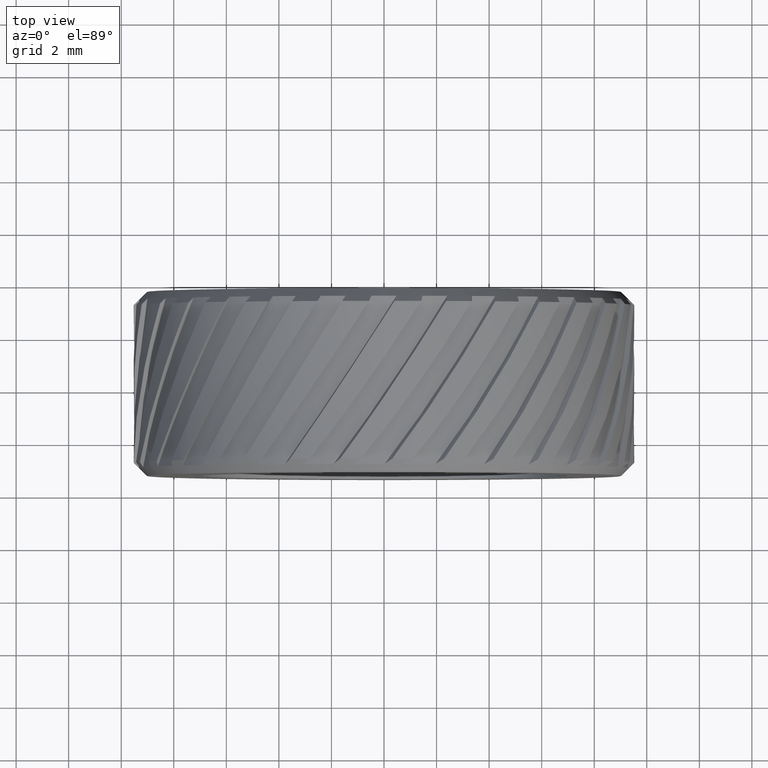
[diagram: clean part render]
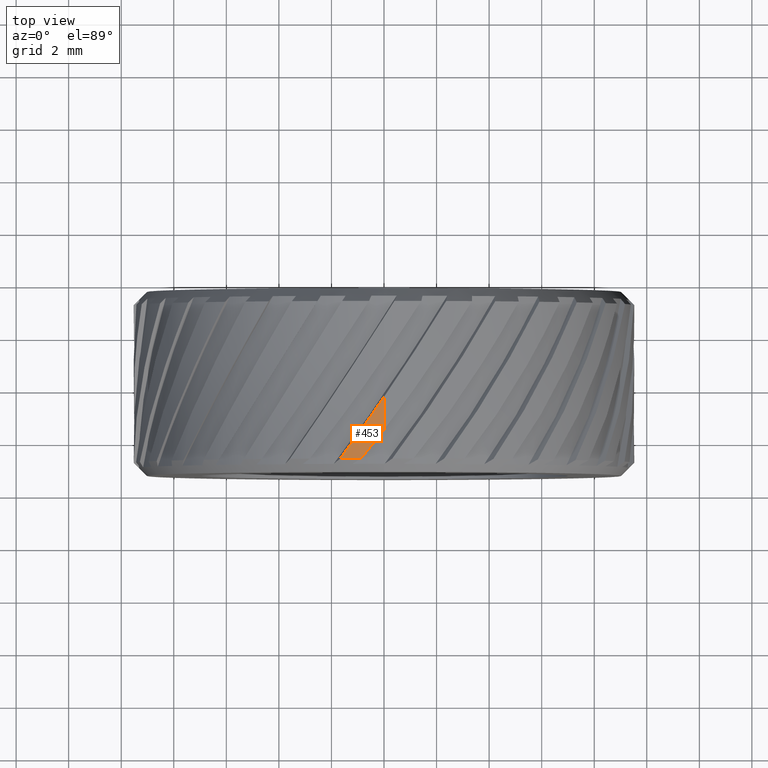
[diagram: same view with one face highlighted and labeled with its STEP entity id]
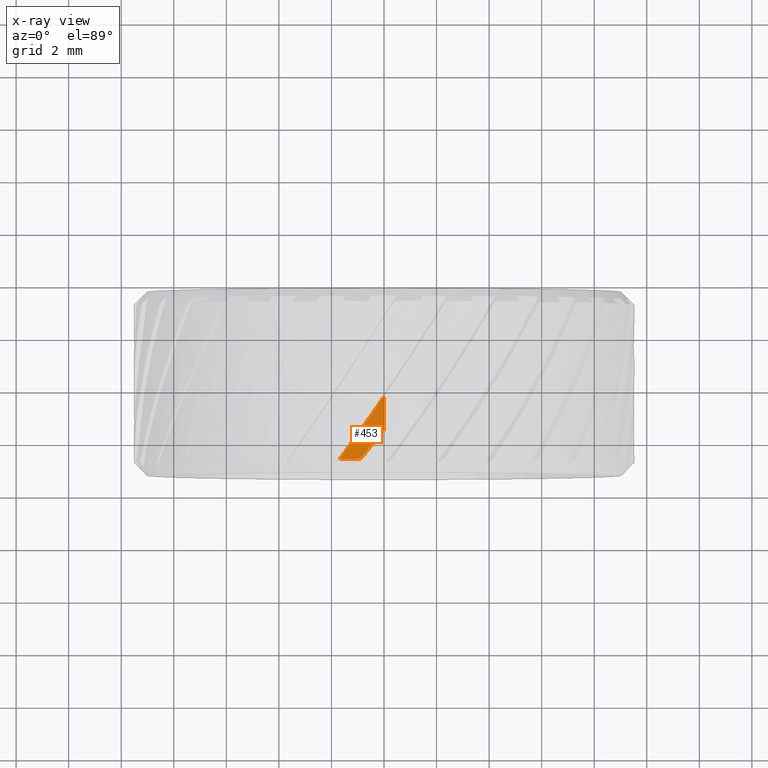
[diagram: x-ray of the same camera — body ghosted, the highlighted face saturated]
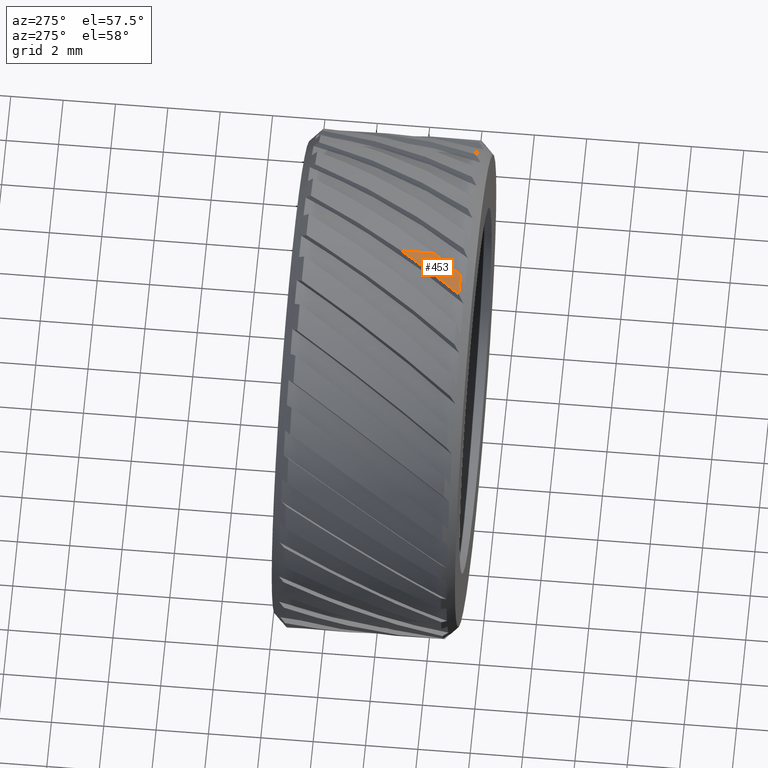
[diagram: same view with one face highlighted and labeled with its STEP entity id]
A machine part, top view. The second image highlights one B-rep face of the part: STEP entity #453.
The next image is the same camera in x-ray: the body ghosted, the highlighted face saturated — about 0% of this face is hidden behind the body in this view.
A second angle (auxiliary view) of the same face is appended — the face is thin or edge-on in the first view.
In plain terms, the highlighted cylindrical surface (partial cylindrical patch) has radius 9.525 mm, axis along (-0, 1, -0).
Its self-contained STEP definition (entity closure, byte-faithful):
#75 = EDGE_CURVE ( 'NONE', #937, #4403, #3081, .T. ) ;
#211 = CARTESIAN_POINT ( 'NONE',  ( -1.666478462133898400, -12.83088448223190700, 9.378084801026487200 ) ) ;
#237 = ORIENTED_EDGE ( 'NONE', *, *, #2641, .T. ) ;
#257 = CYLINDRICAL_SURFACE ( 'NONE', #434, 9.525000000000007500 ) ;
#331 = VECTOR ( 'NONE', #3793, 1000.000000000000000 ) ;
#434 = AXIS2_PLACEMENT_3D ( 'NONE', #472, #1873, #2626 ) ;
#453 = ADVANCED_FACE ( 'NONE', ( #795 ), #257, .T. ) ;
#472 = CARTESIAN_POINT ( 'NONE',  ( 0.0000000000000000000, 46.02073106022621100, 0.0000000000000000000 ) ) ;
#682 = ORIENTED_EDGE ( 'NONE', *, *, #1598, .T. ) ;
#708 = ORIENTED_EDGE ( 'NONE', *, *, #75, .T. ) ;
#754 = DIRECTION ( 'NONE',  ( 0.0000000000000000000, 0.0000000000000000000, 1.000000000000000000 ) ) ;
#795 = FACE_OUTER_BOUND ( 'NONE', #3835, .T. ) ;
#804 = CARTESIAN_POINT ( 'NONE',  ( -0.8712381529669575000, -12.83088448223190900, 9.485070852703994900 ) ) ;
#833 = CARTESIAN_POINT ( 'NONE',  ( -1.666478462133898400, -12.83088448223190700, 9.378084801026487200 ) ) ;
#848 = CARTESIAN_POINT ( 'NONE',  ( -1.116014600252857500, -12.08943590986052800, 9.475901806254185500 ) ) ;
#937 = VERTEX_POINT ( 'NONE', #1242 ) ;
#1242 = CARTESIAN_POINT ( 'NONE',  ( 0.0000000000000000000, -10.48904384630138700, 9.525000000000007500 ) ) ;
#1327 = VERTEX_POINT ( 'NONE', #4561 ) ;
#1451 = CARTESIAN_POINT ( 'NONE',  ( 0.0000000000000000000, -11.73993462587917600, 9.525000000000007500 ) ) ;
#1537 = LINE ( 'NONE', #3076, #331 ) ;
#1598 = EDGE_CURVE ( 'NONE', #1971, #1327, #2877, .T. ) ;
#1762 = CARTESIAN_POINT ( 'NONE',  ( -0.5815367868052161400, -12.48067297726808000, 9.511680973712714100 ) ) ;
#1873 = DIRECTION ( 'NONE',  ( -0.0000000000000000000, 1.000000000000000000, -0.0000000000000000000 ) ) ;
#1958 = CARTESIAN_POINT ( 'NONE',  ( 0.0000000000000000000, -10.48904384630138700, 9.525000000000007500 ) ) ;
#1971 = VERTEX_POINT ( 'NONE', #804 ) ;
#2137 = CARTESIAN_POINT ( 'NONE',  ( 0.0000000000000000000, -12.83088448223190900, 0.0000000000000000000 ) ) ;
#2215 = ORIENTED_EDGE ( 'NONE', *, *, #2389, .T. ) ;
#2389 = EDGE_CURVE ( 'NONE', #1327, #937, #1537, .T. ) ;
#2449 = CIRCLE ( 'NONE', #2563, 9.525000000000007500 ) ;
#2563 = AXIS2_PLACEMENT_3D ( 'NONE', #2137, #2914, #754 ) ;
#2626 = DIRECTION ( 'NONE',  ( 0.0000000000000000000, 0.0000000000000000000, 1.000000000000000000 ) ) ;
#2641 = EDGE_CURVE ( 'NONE', #4403, #1971, #2449, .T. ) ;
#2877 =( BOUNDED_CURVE ( )  B_SPLINE_CURVE ( 3, ( #4759, #1762, #4375, #1451 ),
 .UNSPECIFIED., .F., .F. ) 
 B_SPLINE_CURVE_WITH_KNOTS ( ( 4, 4 ),
 ( 3.992473849274979200, 4.084070449666729300 ),
 .UNSPECIFIED. ) 
 CURVE ( )  GEOMETRIC_REPRESENTATION_ITEM ( )  RATIONAL_B_SPLINE_CURVE ( ( 1.000000000000000000, 0.9993009607645231300, 0.9993009607645231300, 1.000000000000000000 ) ) 
 REPRESENTATION_ITEM ( '' )  );
#2914 = DIRECTION ( 'NONE',  ( -0.0000000000000000000, 1.000000000000000000, -0.0000000000000000000 ) ) ;
#3076 = CARTESIAN_POINT ( 'NONE',  ( 0.0000000000000000000, 46.02073106022621100, 9.525000000000007500 ) ) ;
#3081 =( BOUNDED_CURVE ( )  B_SPLINE_CURVE ( 3, ( #1958, #4178, #848, #833 ),
 .UNSPECIFIED., .F., .T. ) 
 B_SPLINE_CURVE_WITH_KNOTS ( ( 4, 4 ),
 ( 1.989675347273536500, 2.165538831819180800 ),
 .UNSPECIFIED. ) 
 CURVE ( )  GEOMETRIC_REPRESENTATION_ITEM ( )  RATIONAL_B_SPLINE_CURVE ( ( 1.000000000000000000, 0.9974243297970482000, 0.9974243297970482000, 1.000000000000000000 ) ) 
 REPRESENTATION_ITEM ( '' )  );
#3793 = DIRECTION ( 'NONE',  ( -0.0000000000000000000, 1.000000000000000000, -0.0000000000000000000 ) ) ;
#3835 = EDGE_LOOP ( 'NONE', ( #682, #2215, #708, #237 ) ) ;
#4178 = CARTESIAN_POINT ( 'NONE',  ( -0.5590873185368306900, -11.30680656947837700, 9.525000000000011000 ) ) ;
#4375 = CARTESIAN_POINT ( 'NONE',  ( -0.2909209172542973600, -12.11676864174200900, 9.525000000000007500 ) ) ;
#4403 = VERTEX_POINT ( 'NONE', #211 ) ;
#4561 = CARTESIAN_POINT ( 'NONE',  ( 0.0000000000000000000, -11.73993462587917600, 9.525000000000007500 ) ) ;
#4759 = CARTESIAN_POINT ( 'NONE',  ( -0.8712381529669575000, -12.83088448223190900, 9.485070852703994900 ) ) ;